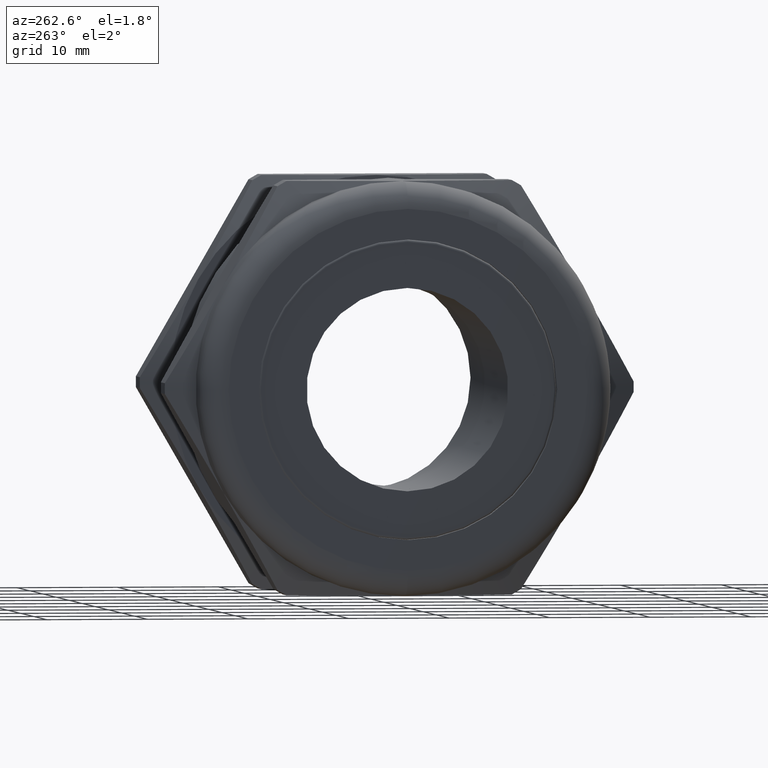
[diagram: clean part render]
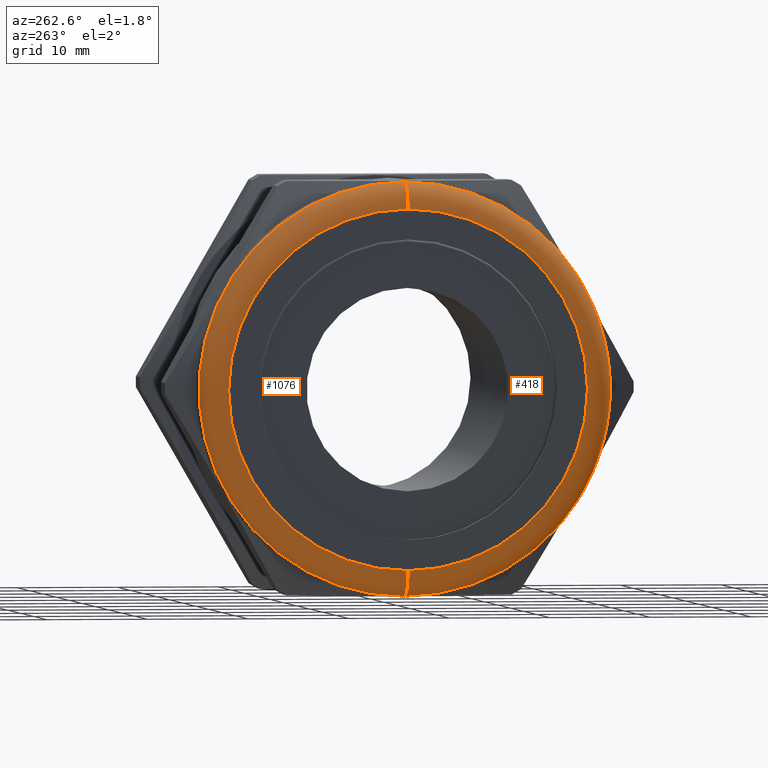
[diagram: same view with one multi-face feature highlighted, each face labeled with its STEP entity id]
A machine part, auxiliary view. The highlighted faces form ONE feature: a constant-radius fillet chain: 2 tangent blend faces with common blend radius 2.606 mm. The faces share edges in the B-rep.
Their STEP definitions:
[1] entity #418 (Torus):
#407 = ORIENTED_EDGE ( 'NONE', *, *, #4258, .F. ) ;
#413 = ORIENTED_EDGE ( 'NONE', *, *, #1211, .T. ) ;
#414 = ORIENTED_EDGE ( 'NONE', *, *, #4227, .F. ) ;
#415 = ORIENTED_EDGE ( 'NONE', *, *, #1157, .F. ) ;
#416 = EDGE_LOOP ( 'NONE', ( #415, #414, #413, #407 ) ) ;
#418 = ADVANCED_FACE ( 'NONE', ( #2005 ), #2000, .T. ) ;
#1128 = VERTEX_POINT ( 'NONE', #3308 ) ;
#1137 = VERTEX_POINT ( 'NONE', #3360 ) ;
#1139 = VERTEX_POINT ( 'NONE', #3359 ) ;
#1148 = VERTEX_POINT ( 'NONE', #3340 ) ;
#1157 = EDGE_CURVE ( 'NONE', #1139, #1137, #3390, .T. ) ;
#1211 = EDGE_CURVE ( 'NONE', #1128, #1148, #3665, .T. ) ;
#2000 = TOROIDAL_SURFACE ( 'NONE', #2061, 0.7024000000000000200, 0.1025999999999999800 ) ;
#2005 = FACE_OUTER_BOUND ( 'NONE', #416, .T. ) ;
#2058 = DIRECTION ( 'NONE',  ( 0.0000000000000000000, 0.0000000000000000000, -1.000000000000000000 ) ) ;
#2059 = DIRECTION ( 'NONE',  ( 1.000000000000000000, 0.0000000000000000000, 0.0000000000000000000 ) ) ;
#2060 = CARTESIAN_POINT ( 'NONE',  ( -0.6223999999999998400, 0.0000000000000000000, 0.0000000000000000000 ) ) ;
#2061 = AXIS2_PLACEMENT_3D ( 'NONE', #2060, #2059, #2058 ) ;
#3308 = CARTESIAN_POINT ( 'NONE',  ( -0.7249999999999998700, 0.0000000000000000000, -0.7024000000000000200 ) ) ;
#3340 = CARTESIAN_POINT ( 'NONE',  ( -0.6223999999999998400, 9.858406733136192400E-017, -0.8050000000000000500 ) ) ;
#3359 = CARTESIAN_POINT ( 'NONE',  ( -0.7249999999999998700, 9.230162925173601500E-017, 0.7024000000000000200 ) ) ;
#3360 = CARTESIAN_POINT ( 'NONE',  ( -0.6223999999999998400, 0.0000000000000000000, 0.8050000000000000500 ) ) ;
#3386 = DIRECTION ( 'NONE',  ( 0.0000000000000000000, 1.224646799147353200E-016, 1.000000000000000000 ) ) ;
#3387 = DIRECTION ( 'NONE',  ( 0.0000000000000000000, 1.000000000000000000, -1.224646799147353200E-016 ) ) ;
#3388 = CARTESIAN_POINT ( 'NONE',  ( -0.6223999999999998400, 8.601919117211009400E-017, 0.7024000000000000200 ) ) ;
#3389 = AXIS2_PLACEMENT_3D ( 'NONE', #3388, #3387, #3386 ) ;
#3390 = CIRCLE ( 'NONE', #3389, 0.1026000000000000200 ) ;
#3661 = DIRECTION ( 'NONE',  ( 0.0000000000000000000, 0.0000000000000000000, -1.000000000000000000 ) ) ;
#3662 = DIRECTION ( 'NONE',  ( 0.0000000000000000000, -1.000000000000000000, 0.0000000000000000000 ) ) ;
#3663 = CARTESIAN_POINT ( 'NONE',  ( -0.6223999999999998400, 0.0000000000000000000, -0.7024000000000000200 ) ) ;
#3664 = AXIS2_PLACEMENT_3D ( 'NONE', #3663, #3662, #3661 ) ;
#3665 = CIRCLE ( 'NONE', #3664, 0.1026000000000000200 ) ;
#4055 = DIRECTION ( 'NONE',  ( 0.0000000000000000000, 0.0000000000000000000, -1.000000000000000000 ) ) ;
#4056 = DIRECTION ( 'NONE',  ( -1.000000000000000000, 0.0000000000000000000, 0.0000000000000000000 ) ) ;
#4057 = CARTESIAN_POINT ( 'NONE',  ( -0.7249999999999998700, 0.0000000000000000000, 0.0000000000000000000 ) ) ;
#4058 = AXIS2_PLACEMENT_3D ( 'NONE', #4057, #4056, #4055 ) ;
#4059 = CIRCLE ( 'NONE', #4058, 0.7024000000000000200 ) ;
#4066 = DIRECTION ( 'NONE',  ( 0.0000000000000000000, 0.0000000000000000000, -1.000000000000000000 ) ) ;
#4067 = DIRECTION ( 'NONE',  ( 1.000000000000000000, 0.0000000000000000000, 0.0000000000000000000 ) ) ;
#4068 = CARTESIAN_POINT ( 'NONE',  ( -0.6223999999999998400, 0.0000000000000000000, 0.0000000000000000000 ) ) ;
#4069 = AXIS2_PLACEMENT_3D ( 'NONE', #4068, #4067, #4066 ) ;
#4070 = CIRCLE ( 'NONE', #4069, 0.8050000000000000500 ) ;
#4227 = EDGE_CURVE ( 'NONE', #1128, #1139, #4059, .T. ) ;
#4258 = EDGE_CURVE ( 'NONE', #1137, #1148, #4070, .T. ) ;
[2] entity #1076 (Torus):
#1076 = ADVANCED_FACE ( 'NONE', ( #3217 ), #3216, .T. ) ;
#1077 = EDGE_LOOP ( 'NONE', ( #1138, #1108, #1146, #1155 ) ) ;
#1107 = EDGE_CURVE ( 'NONE', #1139, #1128, #3290, .T. ) ;
#1108 = ORIENTED_EDGE ( 'NONE', *, *, #1157, .T. ) ;
#1128 = VERTEX_POINT ( 'NONE', #3308 ) ;
#1137 = VERTEX_POINT ( 'NONE', #3360 ) ;
#1138 = ORIENTED_EDGE ( 'NONE', *, *, #1107, .F. ) ;
#1139 = VERTEX_POINT ( 'NONE', #3359 ) ;
#1146 = ORIENTED_EDGE ( 'NONE', *, *, #1147, .F. ) ;
#1147 = EDGE_CURVE ( 'NONE', #1148, #1137, #3345, .T. ) ;
#1148 = VERTEX_POINT ( 'NONE', #3340 ) ;
#1155 = ORIENTED_EDGE ( 'NONE', *, *, #1211, .F. ) ;
#1157 = EDGE_CURVE ( 'NONE', #1139, #1137, #3390, .T. ) ;
#1211 = EDGE_CURVE ( 'NONE', #1128, #1148, #3665, .T. ) ;
#3211 = DIRECTION ( 'NONE',  ( 0.0000000000000000000, 0.0000000000000000000, -1.000000000000000000 ) ) ;
#3212 = DIRECTION ( 'NONE',  ( 1.000000000000000000, 0.0000000000000000000, 0.0000000000000000000 ) ) ;
#3213 = CARTESIAN_POINT ( 'NONE',  ( -0.6223999999999998400, 0.0000000000000000000, 0.0000000000000000000 ) ) ;
#3214 = AXIS2_PLACEMENT_3D ( 'NONE', #3213, #3212, #3211 ) ;
#3216 = TOROIDAL_SURFACE ( 'NONE', #3214, 0.7024000000000000200, 0.1025999999999999800 ) ;
#3217 = FACE_OUTER_BOUND ( 'NONE', #1077, .T. ) ;
#3286 = DIRECTION ( 'NONE',  ( 0.0000000000000000000, 0.0000000000000000000, -1.000000000000000000 ) ) ;
#3287 = DIRECTION ( 'NONE',  ( -1.000000000000000000, 0.0000000000000000000, 0.0000000000000000000 ) ) ;
#3288 = CARTESIAN_POINT ( 'NONE',  ( -0.7249999999999998700, 0.0000000000000000000, 0.0000000000000000000 ) ) ;
#3289 = AXIS2_PLACEMENT_3D ( 'NONE', #3288, #3287, #3286 ) ;
#3290 = CIRCLE ( 'NONE', #3289, 0.7024000000000000200 ) ;
#3308 = CARTESIAN_POINT ( 'NONE',  ( -0.7249999999999998700, 0.0000000000000000000, -0.7024000000000000200 ) ) ;
#3340 = CARTESIAN_POINT ( 'NONE',  ( -0.6223999999999998400, 9.858406733136192400E-017, -0.8050000000000000500 ) ) ;
#3341 = DIRECTION ( 'NONE',  ( 0.0000000000000000000, 0.0000000000000000000, -1.000000000000000000 ) ) ;
#3342 = DIRECTION ( 'NONE',  ( 1.000000000000000000, 0.0000000000000000000, 0.0000000000000000000 ) ) ;
#3343 = CARTESIAN_POINT ( 'NONE',  ( -0.6223999999999998400, 0.0000000000000000000, 0.0000000000000000000 ) ) ;
#3344 = AXIS2_PLACEMENT_3D ( 'NONE', #3343, #3342, #3341 ) ;
#3345 = CIRCLE ( 'NONE', #3344, 0.8050000000000000500 ) ;
#3359 = CARTESIAN_POINT ( 'NONE',  ( -0.7249999999999998700, 9.230162925173601500E-017, 0.7024000000000000200 ) ) ;
#3360 = CARTESIAN_POINT ( 'NONE',  ( -0.6223999999999998400, 0.0000000000000000000, 0.8050000000000000500 ) ) ;
#3386 = DIRECTION ( 'NONE',  ( 0.0000000000000000000, 1.224646799147353200E-016, 1.000000000000000000 ) ) ;
#3387 = DIRECTION ( 'NONE',  ( 0.0000000000000000000, 1.000000000000000000, -1.224646799147353200E-016 ) ) ;
#3388 = CARTESIAN_POINT ( 'NONE',  ( -0.6223999999999998400, 8.601919117211009400E-017, 0.7024000000000000200 ) ) ;
#3389 = AXIS2_PLACEMENT_3D ( 'NONE', #3388, #3387, #3386 ) ;
#3390 = CIRCLE ( 'NONE', #3389, 0.1026000000000000200 ) ;
#3661 = DIRECTION ( 'NONE',  ( 0.0000000000000000000, 0.0000000000000000000, -1.000000000000000000 ) ) ;
#3662 = DIRECTION ( 'NONE',  ( 0.0000000000000000000, -1.000000000000000000, 0.0000000000000000000 ) ) ;
#3663 = CARTESIAN_POINT ( 'NONE',  ( -0.6223999999999998400, 0.0000000000000000000, -0.7024000000000000200 ) ) ;
#3664 = AXIS2_PLACEMENT_3D ( 'NONE', #3663, #3662, #3661 ) ;
#3665 = CIRCLE ( 'NONE', #3664, 0.1026000000000000200 ) ;